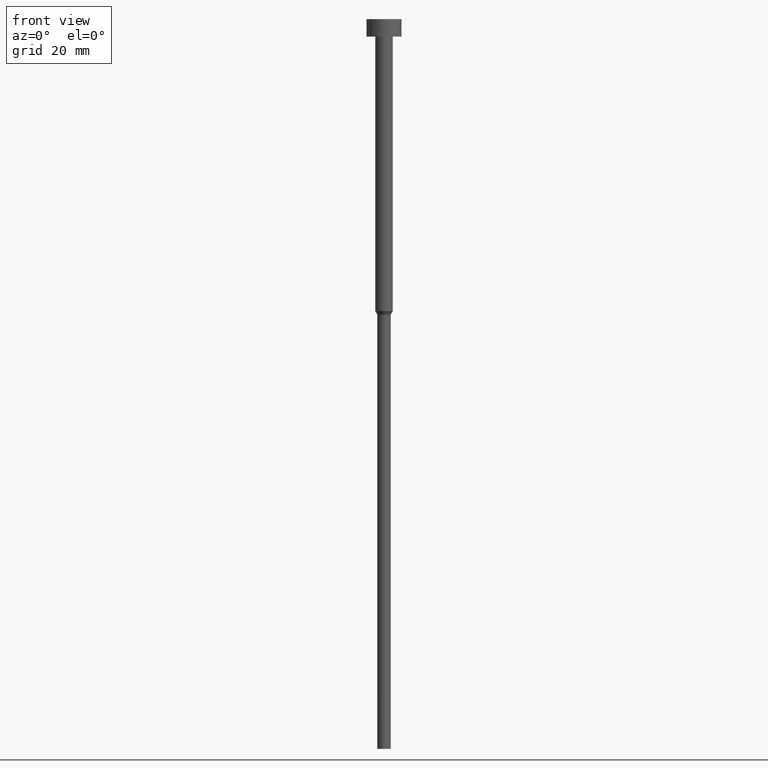
[diagram: clean part render]
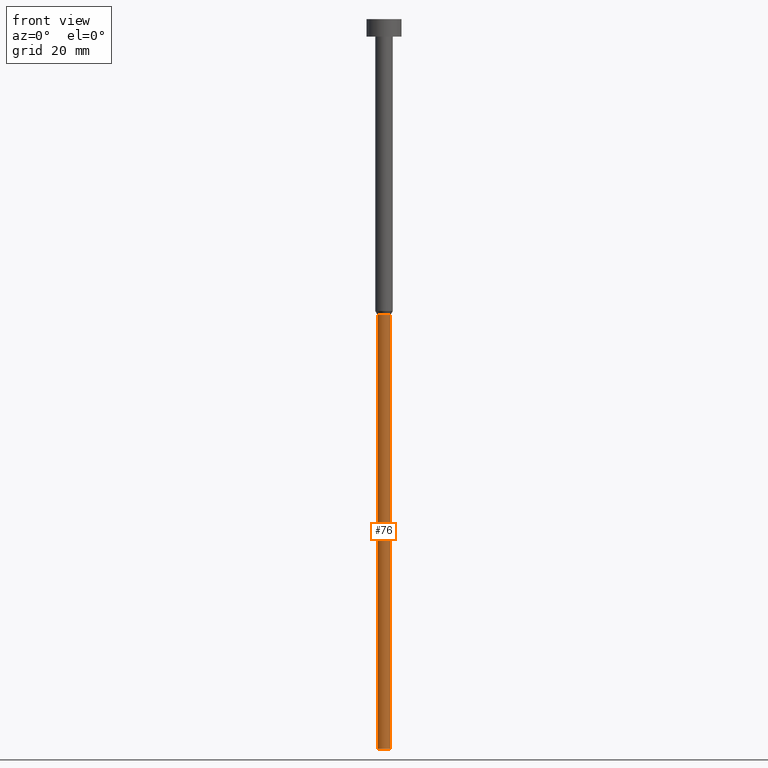
[diagram: same view with one face highlighted and labeled with its STEP entity id]
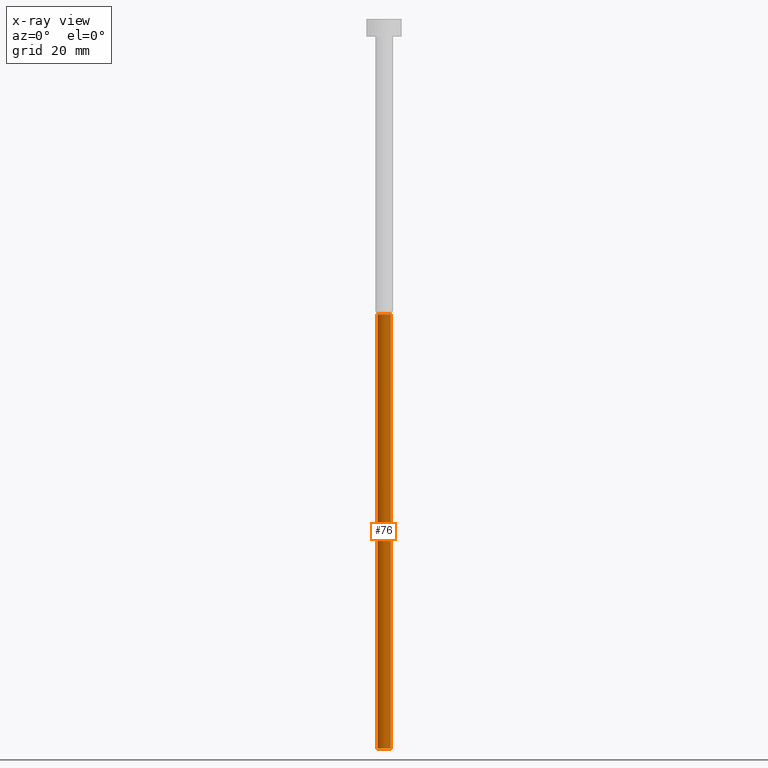
[diagram: x-ray of the same camera — body ghosted, the highlighted face saturated]
A machine part, front view. The second image highlights one B-rep face of the part: STEP entity #76.
The next image is the same camera in x-ray: the body ghosted, the highlighted face saturated — about 0% of this face is hidden behind the body in this view.
In plain terms, the highlighted cylindrical surface (edge-blend (fillet) strip) has radius 1.15 mm, axis along (-0, -0, 1).
Its self-contained STEP definition (entity closure, byte-faithful):
#9 = EDGE_CURVE ( 'NONE', #332, #297, #261, .T. ) ;
#22 = DIRECTION ( 'NONE',  ( -0.000000000000000000, -0.000000000000000000, 1.000000000000000000 ) ) ;
#29 = CARTESIAN_POINT ( 'NONE',  ( -1.149999999999999911, 1.408343819019456028E-16, -125.0000000000000000 ) ) ;
#40 = DIRECTION ( 'NONE',  ( 1.000000000000000000, 0.000000000000000000, 0.000000000000000000 ) ) ;
#45 = LINE ( 'NONE', #240, #233 ) ;
#46 = CYLINDRICAL_SURFACE ( 'NONE', #307, 1.149999999999999911 ) ;
#49 = DIRECTION ( 'NONE',  ( -0.000000000000000000, -0.000000000000000000, 1.000000000000000000 ) ) ;
#76 = ADVANCED_FACE ( 'NONE', ( #323 ), #46, .T. ) ;
#94 = CARTESIAN_POINT ( 'NONE',  ( -1.149999999999999911, 1.408343819019456028E-16, -50.60621778264910375 ) ) ;
#133 = EDGE_CURVE ( 'NONE', #186, #297, #209, .T. ) ;
#143 = CARTESIAN_POINT ( 'NONE',  ( 1.149999999999999911, 0.000000000000000000, -125.0000000000000000 ) ) ;
#147 = DIRECTION ( 'NONE',  ( 1.000000000000000000, 0.000000000000000000, 0.000000000000000000 ) ) ;
#149 = DIRECTION ( 'NONE',  ( -0.000000000000000000, -0.000000000000000000, 1.000000000000000000 ) ) ;
#158 = ORIENTED_EDGE ( 'NONE', *, *, #185, .F. ) ;
#163 = CARTESIAN_POINT ( 'NONE',  ( 0.000000000000000000, 0.000000000000000000, -125.0000000000000000 ) ) ;
#179 = CARTESIAN_POINT ( 'NONE',  ( 1.149999999999999911, 0.000000000000000000, 0.000000000000000000 ) ) ;
#185 = EDGE_CURVE ( 'NONE', #286, #332, #45, .T. ) ;
#186 = VERTEX_POINT ( 'NONE', #143 ) ;
#190 = EDGE_LOOP ( 'NONE', ( #158, #334, #230, #222 ) ) ;
#199 = CARTESIAN_POINT ( 'NONE',  ( 0.000000000000000000, 0.000000000000000000, -50.60621778264910375 ) ) ;
#209 = LINE ( 'NONE', #179, #333 ) ;
#222 = ORIENTED_EDGE ( 'NONE', *, *, #9, .F. ) ;
#227 = CIRCLE ( 'NONE', #251, 1.149999999999999911 ) ;
#230 = ORIENTED_EDGE ( 'NONE', *, *, #133, .T. ) ;
#233 = VECTOR ( 'NONE', #49, 1000.000000000000000 ) ;
#235 = CARTESIAN_POINT ( 'NONE',  ( 0.000000000000000000, 0.000000000000000000, 0.000000000000000000 ) ) ;
#240 = CARTESIAN_POINT ( 'NONE',  ( -1.149999999999999911, 1.408343819019456028E-16, 0.000000000000000000 ) ) ;
#249 = CARTESIAN_POINT ( 'NONE',  ( 1.149999999999999911, 0.000000000000000000, -50.60621778264910375 ) ) ;
#251 = AXIS2_PLACEMENT_3D ( 'NONE', #163, #252, #280 ) ;
#252 = DIRECTION ( 'NONE',  ( -0.000000000000000000, -0.000000000000000000, 1.000000000000000000 ) ) ;
#261 = CIRCLE ( 'NONE', #337, 1.149999999999999911 ) ;
#268 = EDGE_CURVE ( 'NONE', #286, #186, #227, .T. ) ;
#280 = DIRECTION ( 'NONE',  ( 1.000000000000000000, 0.000000000000000000, 0.000000000000000000 ) ) ;
#286 = VERTEX_POINT ( 'NONE', #29 ) ;
#297 = VERTEX_POINT ( 'NONE', #249 ) ;
#307 = AXIS2_PLACEMENT_3D ( 'NONE', #235, #149, #147 ) ;
#317 = DIRECTION ( 'NONE',  ( -0.000000000000000000, -0.000000000000000000, 1.000000000000000000 ) ) ;
#323 = FACE_OUTER_BOUND ( 'NONE', #190, .T. ) ;
#332 = VERTEX_POINT ( 'NONE', #94 ) ;
#333 = VECTOR ( 'NONE', #22, 1000.000000000000000 ) ;
#334 = ORIENTED_EDGE ( 'NONE', *, *, #268, .T. ) ;
#337 = AXIS2_PLACEMENT_3D ( 'NONE', #199, #317, #40 ) ;